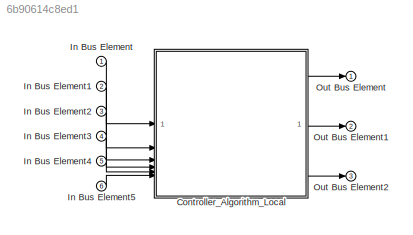
MODEL slx_6b90614c8ed1
KIND model
CONFIG AbsTol = auto
CONFIG EnableMultiTasking = off
CONFIG FixedStep = auto
CONFIG InitFcn = Simulink.defineIntEnumType(...\n'modeSchedulerEnum', ...\n{'Error', 'OpenLoopVelocity', 'CalibrateEncoder', 'Velocity'}, ...\n[0, 1, 2, 3]);
CONFIG MaxStep = auto
CONFIG MinStep = auto
CONFIG RelTol = 1e-3
CONFIG SampleTimeConstraint = Unconstrained
CONFIG SolverName = FixedStepAuto
CONFIG StartTime = 0.0
CONFIG StopTime = 10.0
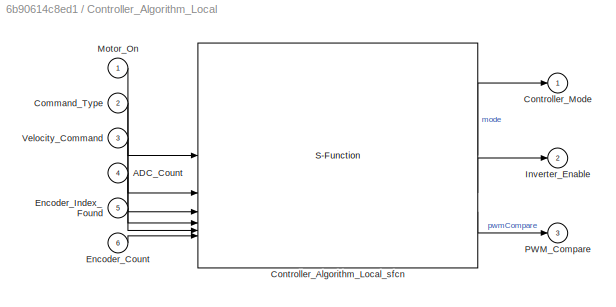
BLOCK [SubSystem] Controller_Algorithm_Local
BLOCK [Inport] Controller_Algorithm_Local/ADC_Count
  Interpolate = off
  Port = 4
  PortDimensions = 2
  SampleTime = sampleTime.CurrentControl
BLOCK [Inport] Controller_Algorithm_Local/Command_Type
  Interpolate = off
  Port = 2
BLOCK [S-Function] Controller_Algorithm_Local/Controller_Algorithm_Local_sfcn
  CopyFcn = if ~strcmp(get_param(gcb,'Linkstatus'),'none') && ...\n~strcmp(get_param(gcb,'Linkstatus'),'implicit')      \n  set_param(gcb,'LinkStatus','none');                \nend
  EnableBusSupport = off
  FunctionName = Controller_Algorithm_Local_sf
  SFcnIsStateOwnerBlock = on
  SFcnStateName = DWORK0,DWORK1,DWORK2,DWORK3,DWORK4,DWORK5,DWORK6,DWORK7,DWORK8,DWORK9,DWORK15,DWORK16,DWORK17,DWORK18,DWORK19,DWORK20,DWORK21,DWORK22,DWORK23,DWORK24,DWORK25,DWORK26,DWORK27,DWORK28,DWORK29,DWORK30,DWORK31,DWORK32,DWORK33,DWORK34,DWORK35,DWORK37,DWORK38,DWORK39,DWORK40,DWORK41,DWORK42,DWORK43,DWORK44,DWORK45,DWORK46,DWORK47,DWORK48,DWORK49
  SFunctionDeploymentMode = off
BLOCK [Outport] Controller_Algorithm_Local/Controller_Mode
BLOCK [Inport] Controller_Algorithm_Local/Encoder_Count
  Interpolate = off
  Port = 6
BLOCK [Inport] Controller_Algorithm_Local/Encoder_Index_Found
  Interpolate = off
  Port = 5
BLOCK [Outport] Controller_Algorithm_Local/Inverter_Enable
  Port = 2
BLOCK [Inport] Controller_Algorithm_Local/Motor_On
  Interpolate = off
  SampleTime = sampleTime.VelocityControl
BLOCK [Outport] Controller_Algorithm_Local/PWM_Compare
  Port = 3
BLOCK [Inport] Controller_Algorithm_Local/Velocity_Command
  Port = 3
BLOCK [Inport] In Bus Element
BLOCK [Inport] In Bus Element1
  Port = 2
BLOCK [Inport] In Bus Element2
  Port = 3
BLOCK [Inport] In Bus Element3
  Port = 4
BLOCK [Inport] In Bus Element4
  Port = 5
BLOCK [Inport] In Bus Element5
  Port = 6
BLOCK [Outport] Out Bus Element
BLOCK [Outport] Out Bus Element1
  Port = 2
BLOCK [Outport] Out Bus Element2
  Port = 3
LINE Controller_Algorithm_Local/ADC_Count:1 -> Controller_Algorithm_Local/Controller_Algorithm_Local_sfcn:4
LINE Controller_Algorithm_Local/Command_Type:1 -> Controller_Algorithm_Local/Controller_Algorithm_Local_sfcn:2
LINE Controller_Algorithm_Local/Controller_Algorithm_Local_sfcn:1 -> Controller_Algorithm_Local/Controller_Mode:1
LINE Controller_Algorithm_Local/Controller_Algorithm_Local_sfcn:2 -> Controller_Algorithm_Local/Inverter_Enable:1
LINE Controller_Algorithm_Local/Controller_Algorithm_Local_sfcn:3 -> Controller_Algorithm_Local/PWM_Compare:1
LINE Controller_Algorithm_Local/Encoder_Count:1 -> Controller_Algorithm_Local/Controller_Algorithm_Local_sfcn:6
LINE Controller_Algorithm_Local/Encoder_Index_Found:1 -> Controller_Algorithm_Local/Controller_Algorithm_Local_sfcn:5
LINE Controller_Algorithm_Local/Motor_On:1 -> Controller_Algorithm_Local/Controller_Algorithm_Local_sfcn:1
LINE Controller_Algorithm_Local/Velocity_Command:1 -> Controller_Algorithm_Local/Controller_Algorithm_Local_sfcn:3
LINE Controller_Algorithm_Local:1 -> Out Bus Element:1
LINE Controller_Algorithm_Local:2 -> Out Bus Element1:1
LINE Controller_Algorithm_Local:3 -> Out Bus Element2:1
LINE In Bus Element1:1 -> Controller_Algorithm_Local:2
LINE In Bus Element2:1 -> Controller_Algorithm_Local:3
LINE In Bus Element3:1 -> Controller_Algorithm_Local:4
LINE In Bus Element4:1 -> Controller_Algorithm_Local:5
LINE In Bus Element5:1 -> Controller_Algorithm_Local:6
LINE In Bus Element:1 -> Controller_Algorithm_Local:1
